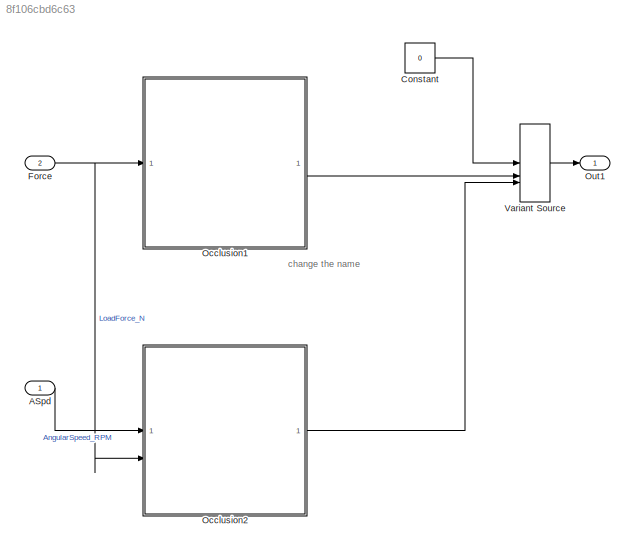
MODEL slx_8f106cbd6c63
KIND model
CONFIG AbsTol = auto
CONFIG EnableMultiTasking = off
CONFIG FixedStep = auto
CONFIG MaxStep = 0.001
CONFIG MinStep = auto
CONFIG RelTol = 1e-5
CONFIG SampleTimeConstraint = Unconstrained
CONFIG SolverName = FixedStepDiscrete
CONFIG StartTime = 0.0
CONFIG StopTime = 120
BLOCK [Inport] ASpd
  OutDataTypeStr = double
  PortDimensions = 1
  SampleTime = 0.001
  SamplingMode = Sample based
  SignalType = real
BLOCK [Constant] Constant
  OutDataTypeStr = boolean
  Value = 0
BLOCK [Inport] Force
  OutDataTypeStr = double
  Port = 2
  PortDimensions = 1
  SampleTime = 0.001
  SamplingMode = Sample based
  SignalType = real
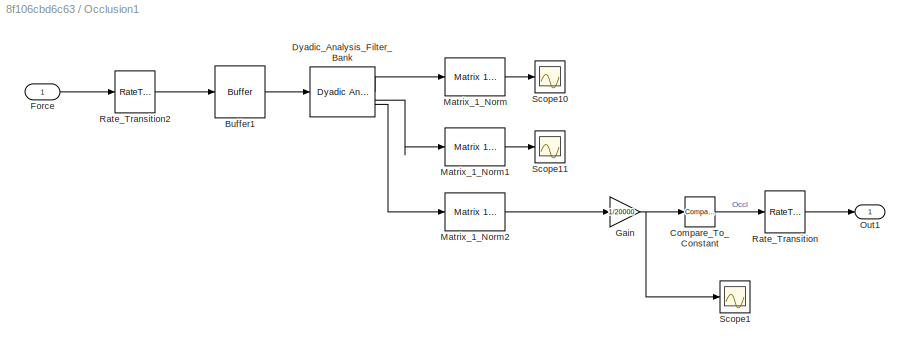
BLOCK [SubSystem] Occlusion1
  TreatAsAtomicUnit = on
BLOCK [Buffer] Occlusion1/Buffer1
  N = 2000
  OutputFrames = off
  V = 1999
BLOCK [Reference] Occlusion1/Compare_To_Constant  REF=simulink/Logic and Bit
Operations/Compare
To Constant
  SourceBlock = simulink/Logic and Bit\nOperations/Compare\nTo Constant
  SourceType = Compare To Constant
BLOCK [Reference] Occlusion1/Dyadic_Analysis_Filter_Bank  REF=dspmlti4/Dyadic Analysis
Filter Bank
  SourceBlock = dspmlti4/Dyadic Analysis\nFilter Bank
  SourceType = Dyadic Analysis Filter Bank
BLOCK [Inport] Occlusion1/Force
  OutMax = 10^7
  OutMin = 0
BLOCK [Gain] Occlusion1/Gain
  Gain = 1/20000
BLOCK [Reference] Occlusion1/Matrix_1_Norm  REF=dspmtrx3/Matrix 
1-Norm
  SourceBlock = dspmtrx3/Matrix \n1-Norm
  SourceType = Matrix 1-Norm
BLOCK [Reference] Occlusion1/Matrix_1_Norm1  REF=dspmtrx3/Matrix 
1-Norm
  SourceBlock = dspmtrx3/Matrix \n1-Norm
  SourceType = Matrix 1-Norm
BLOCK [Reference] Occlusion1/Matrix_1_Norm2  REF=dspmtrx3/Matrix 
1-Norm
  SourceBlock = dspmtrx3/Matrix \n1-Norm
  SourceType = Matrix 1-Norm
BLOCK [Outport] Occlusion1/Out1
  OutDataTypeStr = boolean
  VectorParamsAs1DForOutWhenUnconnected = off
BLOCK [RateTransition] Occlusion1/Rate_Transition
BLOCK [RateTransition] Occlusion1/Rate_Transition2
  OutPortSampleTime = 0.01
BLOCK [Scope] Occlusion1/Scope1
  Floating = off
  NumInputPorts = 1
  ScopeSpecificationString = Simulink.scopes.TimeScopeBlockCfg('CurrentConfiguration', extmgr.ConfigurationSet(extmgr.Configuration('Core','General UI',true),extmgr.Configuration('Core','Source UI',true),extmgr.Configuration('Sources','WiredSimulink',true,'DataLoggingVariableName','ScopeData1'),extmgr.Configuration('Visuals','Time Domain',true,'SerializedDisplays',{struct('MinYLimReal','-0.96219','MaxYLimReal','2.32869','YLab...<+1437ch>
BLOCK [Scope] Occlusion1/Scope10
  Floating = off
  NumInputPorts = 1
  ScopeSpecificationString = Simulink.scopes.TimeScopeBlockCfg('CurrentConfiguration', extmgr.ConfigurationSet(extmgr.Configuration('Core','General UI',true),extmgr.Configuration('Core','Source UI',true),extmgr.Configuration('Sources','WiredSimulink',true,'DataLoggingVariableName','ScopeData4'),extmgr.Configuration('Visuals','Time Domain',true,'SerializedDisplays',{struct('MinYLimReal','-4.9859','MaxYLimReal','44.87314','YLab...<+1453ch>
BLOCK [Scope] Occlusion1/Scope11
  Floating = off
  NumInputPorts = 1
  ScopeSpecificationString = Simulink.scopes.TimeScopeBlockCfg('CurrentConfiguration', extmgr.ConfigurationSet(extmgr.Configuration('Core','General UI',true),extmgr.Configuration('Core','Source UI',true),extmgr.Configuration('Sources','WiredSimulink',true,'DataLoggingVariableName','ScopeData5'),extmgr.Configuration('Visuals','Time Domain',true,'SerializedDisplays',{struct('MinYLimReal','-8.45937','MaxYLimReal','76.13433','YLa...<+1454ch>
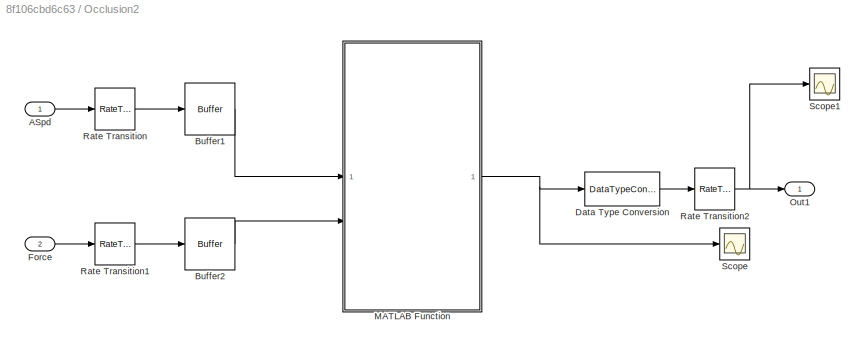
BLOCK [SubSystem] Occlusion2
BLOCK [Inport] Occlusion2/ASpd
BLOCK [Buffer] Occlusion2/Buffer1
  N = 2500
  OutputFrames = off
BLOCK [Buffer] Occlusion2/Buffer2
  N = 2500
  OutputFrames = off
BLOCK [DataTypeConversion] Occlusion2/Data Type Conversion
  OutDataTypeStr = boolean
  RndMeth = Floor
  SaturateOnIntegerOverflow = off
BLOCK [Inport] Occlusion2/Force
  Port = 2
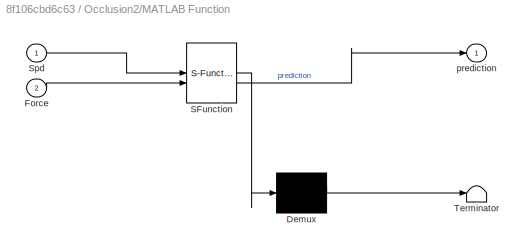
BLOCK [SubSystem] Occlusion2/MATLAB Function
  ErrorFcn = Stateflow.Translate.translate
  PermitHierarchicalResolution = ExplicitOnly
  SFBlockType = MATLAB Function
  TreatAsAtomicUnit = on
BLOCK [Demux] Occlusion2/MATLAB Function/ Demux 
  Outputs = 1
BLOCK [S-Function] Occlusion2/MATLAB Function/ SFunction 
  EnableBusSupport = on
  FunctionName = sf_sfun
  PortCounts = [2 2]
  SFcnIsStateOwnerBlock = off
  SFunctionDeploymentMode = off
  Tag = Stateflow S-Function 1
BLOCK [Terminator] Occlusion2/MATLAB Function/ Terminator 
BLOCK [Inport] Occlusion2/MATLAB Function/Force
  Port = 2
BLOCK [Inport] Occlusion2/MATLAB Function/Spd
BLOCK [Outport] Occlusion2/MATLAB Function/prediction
  VectorParamsAs1DForOutWhenUnconnected = off
BLOCK [Outport] Occlusion2/Out1
  VectorParamsAs1DForOutWhenUnconnected = off
BLOCK [RateTransition] Occlusion2/Rate Transition
  OutPortSampleTime = 0.01
BLOCK [RateTransition] Occlusion2/Rate Transition1
  OutPortSampleTime = 0.01
BLOCK [RateTransition] Occlusion2/Rate Transition2
  OutPortSampleTime = 0.001
BLOCK [Scope] Occlusion2/Scope
  Floating = off
  NumInputPorts = 1
  ScopeSpecificationString = Simulink.scopes.TimeScopeBlockCfg('CurrentConfiguration', extmgr.ConfigurationSet(extmgr.Configuration('Core','General UI',true),extmgr.Configuration('Core','Source UI',true),extmgr.Configuration('Sources','WiredSimulink',true,'DataLoggingVariableName','ScopeData1'),extmgr.Configuration('Visuals','Time Domain',true,'SerializedDisplays',{struct('MinYLimReal','-0.125','MaxYLimReal','1.125','YLabelRe...<+1453ch>
BLOCK [Scope] Occlusion2/Scope1
  Floating = off
  NumInputPorts = 1
  ScopeSpecificationString = Simulink.scopes.TimeScopeBlockCfg('CurrentConfiguration', extmgr.ConfigurationSet(extmgr.Configuration('Core','General UI',true),extmgr.Configuration('Core','Source UI',true),extmgr.Configuration('Sources','WiredSimulink',true,'DataLoggingVariableName','ScopeData2'),extmgr.Configuration('Visuals','Time Domain',true,'SerializedDisplays',{struct('MinYLimReal','-0.125','MaxYLimReal','1.125','YLabelRe...<+1455ch>
BLOCK [Outport] Out1
  OutDataTypeStr = boolean
  PortDimensions = 1
  SampleTime = 0.001
  SamplingMode = Sample based
  SignalType = real
  VectorParamsAs1DForOutWhenUnconnected = off
BLOCK [VariantSource] Variant Source
ANNOTATION (root): change the name
LINE ASpd:1 -> Occlusion2:1
LINE Constant:1 -> Variant Source:1
NET Force:1 -> Occlusion1:1, Occlusion2:2
LINE Occlusion1/Buffer1:1 -> Occlusion1/Dyadic_Analysis_Filter_Bank:1
LINE Occlusion1/Compare_To_Constant:1 -> Occlusion1/Rate_Transition:1
LINE Occlusion1/Dyadic_Analysis_Filter_Bank:1 -> Occlusion1/Matrix_1_Norm:1
LINE Occlusion1/Dyadic_Analysis_Filter_Bank:2 -> Occlusion1/Matrix_1_Norm1:1
LINE Occlusion1/Dyadic_Analysis_Filter_Bank:3 -> Occlusion1/Matrix_1_Norm2:1
LINE Occlusion1/Force:1 -> Occlusion1/Rate_Transition2:1
NET Occlusion1/Gain:1 -> Occlusion1/Compare_To_Constant:1, Occlusion1/Scope1:1
LINE Occlusion1/Matrix_1_Norm1:1 -> Occlusion1/Scope11:1
LINE Occlusion1/Matrix_1_Norm2:1 -> Occlusion1/Gain:1
LINE Occlusion1/Matrix_1_Norm:1 -> Occlusion1/Scope10:1
LINE Occlusion1/Rate_Transition2:1 -> Occlusion1/Buffer1:1
LINE Occlusion1/Rate_Transition:1 -> Occlusion1/Out1:1
LINE Occlusion1:1 -> Variant Source:2
LINE Occlusion2/ASpd:1 -> Occlusion2/Rate Transition:1
LINE Occlusion2/Buffer1:1 -> Occlusion2/MATLAB Function:1
LINE Occlusion2/Buffer2:1 -> Occlusion2/MATLAB Function:2
LINE Occlusion2/Data Type Conversion:1 -> Occlusion2/Rate Transition2:1
LINE Occlusion2/Force:1 -> Occlusion2/Rate Transition1:1
NET Occlusion2/MATLAB Function:1 -> Occlusion2/Data Type Conversion:1, Occlusion2/Scope:1
LINE Occlusion2/Rate Transition1:1 -> Occlusion2/Buffer2:1
NET Occlusion2/Rate Transition2:1 -> Occlusion2/Out1:1, Occlusion2/Scope1:1
LINE Occlusion2/Rate Transition:1 -> Occlusion2/Buffer1:1
LINE Occlusion2:1 -> Variant Source:3
LINE Variant Source:1 -> Out1:1
note: NET lines group one-source signal fan-out (src -> all destinations, sorted); 1:1 wires keep LINE
CHART Test Assessment states=4 transitions=14
  STATE_LABEL 'step_1'
  STATE_LABEL "BeforeEvent\nverify(Occl<0.5,'Report false alarm')"
  STATE_LABEL "PostEventAction\nverify(elapsed<30||Occl>0.5,'Failed to report alarm')"
  STATE_LABEL 'End'
  STATE_LABEL '[t < 50\n]'
  STATE_LABEL '[~in(step_1.BeforeEvent)]'
  STATE_LABEL '[t > 50 & Occl == boolean(1)\n]'
  STATE_LABEL '[~in(step_1.PostEventAction)]'
  STATE_LABEL '[~in(step_1.End)]'
  STATE_LABEL "BeforeEvent\nverify(Occl<0.5,'Report false alarm')"
  STATE_LABEL "PostEventAction\nverify(elapsed<30||Occl>0.5,'Failed to report alarm')"
  STATE_LABEL 'End'
CHART Test Assessment states=3 transitions=10
  STATE_LABEL 'step_1'
  STATE_LABEL "BeforeEvent\nverify(Occl<0.5,'Report false alarm')"
  STATE_LABEL "PostEventAction\nverify(elapsed<30||Occl>0.5,'Failed to report alarm')"
  STATE_LABEL '[t < 50\n]'
  STATE_LABEL '[~in(step_1.BeforeEvent)]'
  STATE_LABEL '[~in(step_1.PostEventAction)]'
  STATE_LABEL "BeforeEvent\nverify(Occl<0.5,'Report false alarm')"
  STATE_LABEL "PostEventAction\nverify(elapsed<30||Occl>0.5,'Failed to report alarm')"
CHART Occlusion2/MATLAB Function states=1 transitions=1
  STATE_LABEL 'eML_blk_kernel()'
  STATE_LABEL "SCRIPT:\nfunction prediction = Classification(Spd,Force)\n% #codegen\n% Define stats function\nstatfuns = @(x)[max(x) mean(x) min(x) var(x) std(x)];\n% Compose all necesssary features\nSpdFeature = statfuns(Spd);\nForceFeature = statfuns(Force);\nX = [ForceFeature SpdFeature];\n% Create  persistent function\npersistent CompactMdl\n\nif(isempty(CompactMdl))\n    CompactMdl = loadCompactModel('SVMTest3');\nend\n% ...<+63ch>"
CHART  states=0 transitions=0
